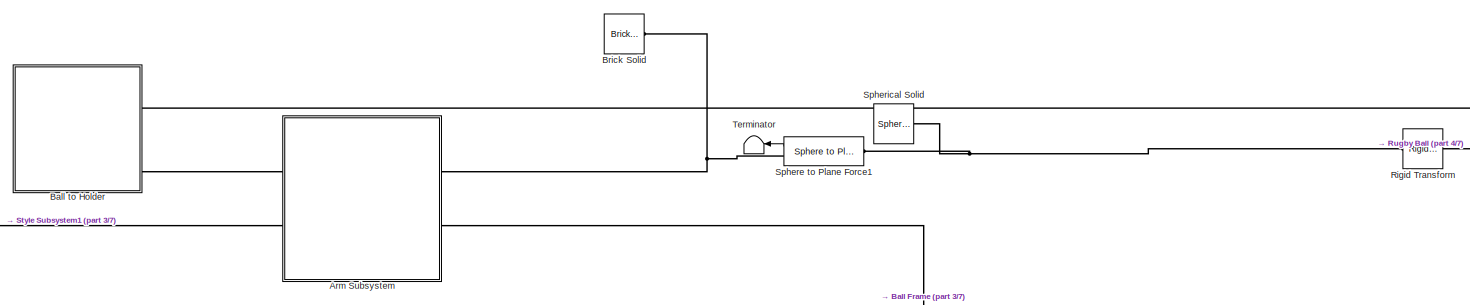
[diagram: root canvas - part 1/7, top center region]
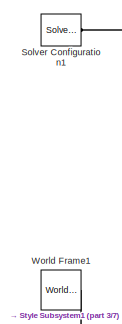
[diagram: root canvas - part 2/7, top left region]
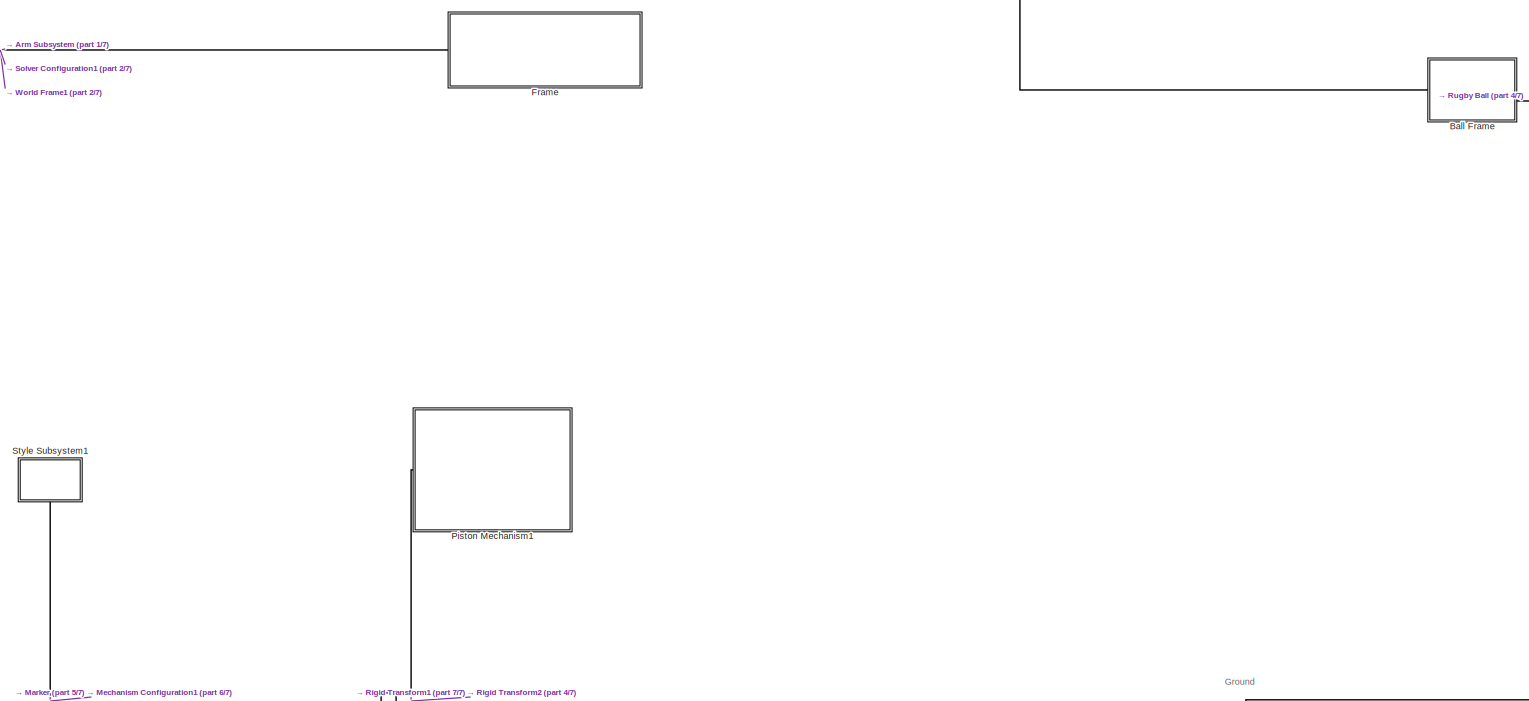
[diagram: root canvas - part 3/7, central region]
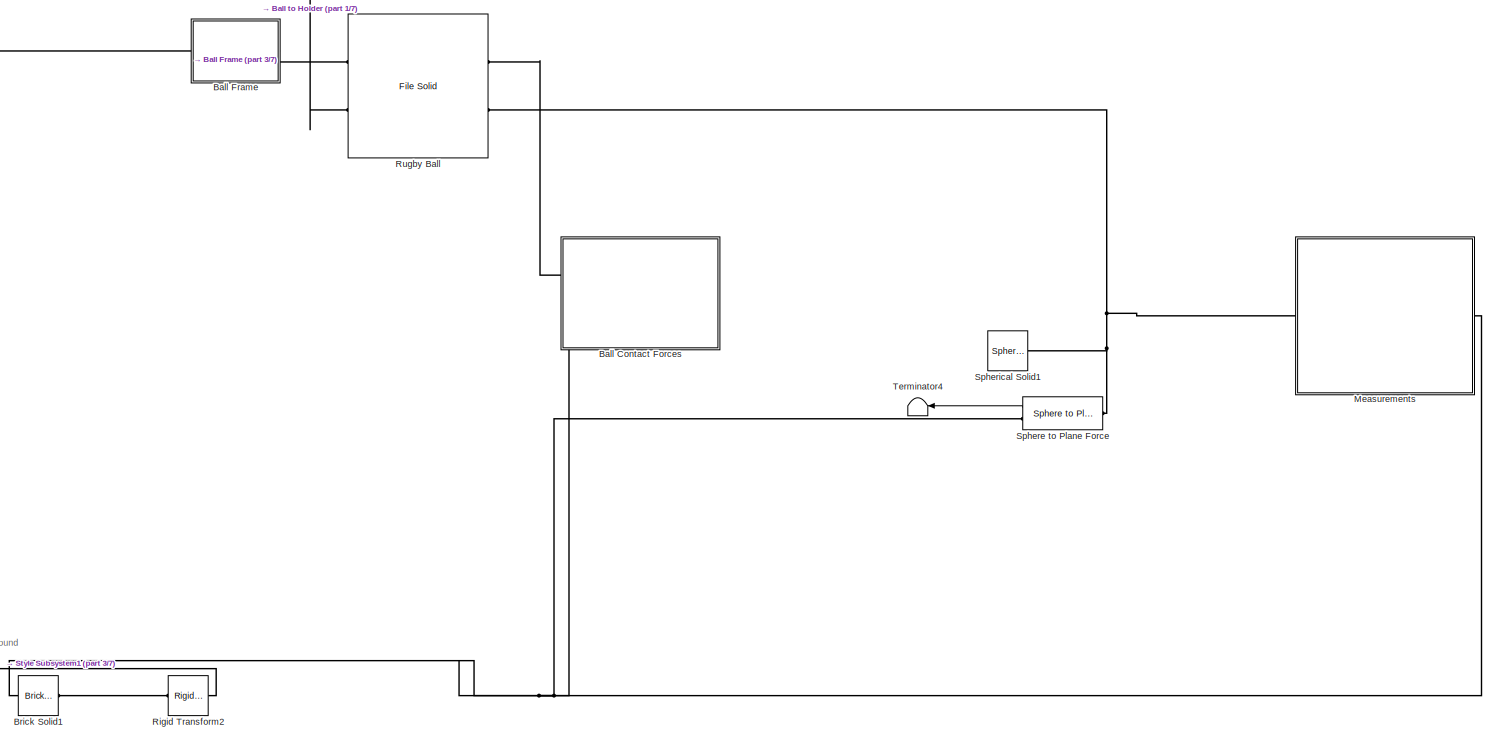
[diagram: root canvas - part 4/7, middle right region]
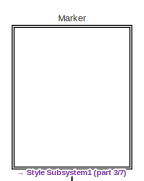
[diagram: root canvas - part 5/7, bottom left region]
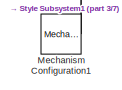
[diagram: root canvas - part 6/7, bottom left region]
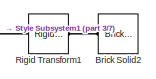
[diagram: root canvas - part 7/7, bottom left region]
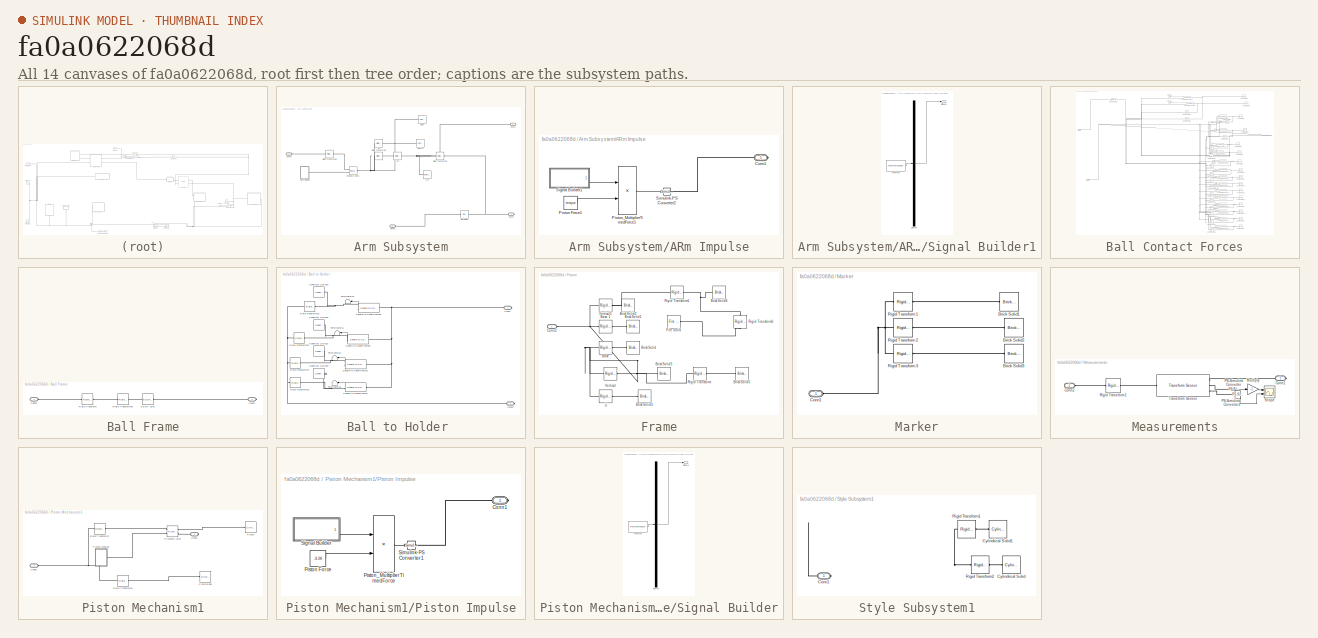
[diagram: thumbnail index - all 14 canvases of the model, root first then tree order]
MODEL slx_fa0a0622068d
KIND model
CONFIG AbsTol = auto
CONFIG EnableMultiTasking = off
CONFIG FixedStep = 0.001
CONFIG MaxStep = auto
CONFIG MinStep = auto
CONFIG RelTol = 1e-3
CONFIG SampleTimeConstraint = Unconstrained
CONFIG Solver = FixedStepAuto
CONFIG SolverName = FixedStepAuto
CONFIG StartTime = 0.0
CONFIG StopTime = 3.6
BLOCK [SubSystem] Arm Subsystem
  Ports = [0, 0, 0, 0, 0, 2, 2]
  RequestExecContextInheritance = off
BLOCK [SubSystem] Arm Subsystem/ARm Impulse
  Ports = [0, 0, 0, 0, 0, 0, 1]
  RequestExecContextInheritance = off
BLOCK [PMIOPort] Arm Subsystem/ARm Impulse/Conn1
  Side = Right
BLOCK [Constant] Arm Subsystem/ARm Impulse/Piston Force1
  Value = torque
BLOCK [Product] Arm Subsystem/ARm Impulse/Piston_MultiplierTimedForce1
  Ports = [2, 1]
BLOCK [SubSystem] Arm Subsystem/ARm Impulse/Signal Builder1
  ClipboardFcn = sigbuilder_block('clipboard');
  CloseFcn = sigbuilder_block('close');
  ContinueFcn = sigbuilder_block('continue');
  CopyFcn = sigbuilder_block('copy');
  DeleteFcn = sigbuilder_block('delete');
  LoadFcn = sigbuilder_block('load');
  MaskHideContents = on
  ModelCloseFcn = sigbuilder_block('modelClose');
  NameChangeFcn = sigbuilder_block('namechange');
  OpenFcn = sigbuilder_block('open',[437.6 199.2 550.4 400 ]);
  PauseFcn = sigbuilder_block('pause');
  Ports = [0, 1]
  PreSaveFcn = sigbuilder_block('preSave');
  RequestExecContextInheritance = off
  StartFcn = sigbuilder_block('start');
  StopFcn = sigbuilder_block('stop');
  Tag = STV Subsys
BLOCK [Demux] Arm Subsystem/ARm Impulse/Signal Builder1/Demux
  DisplayOption = none
  Outputs = 1
  Ports = [1, 1]
  Tag = STV Demux
BLOCK [FromWorkspace] Arm Subsystem/ARm Impulse/Signal Builder1/FromWs
  Tag = STV FromWs
  VariableName = tuvar
BLOCK [Outport] Arm Subsystem/ARm Impulse/Signal Builder1/Signal 1
  Tag = STV Outport
BLOCK [Reference] Arm Subsystem/ARm Impulse/Simulink-PS Converter2  REF=nesl_utility/Simulink-PS
Converter
  Ports = [1, 0, 0, 0, 0, 0, 1]
  SourceBlock = nesl_utility/Simulink-PS\nConverter
  SourceProductBaseCode = SS
  SourceType = Simulink-PS\nConverter
BLOCK [Reference] Arm Subsystem/Arm  REF=sm_lib/Body Elements/Brick Solid
  NameLocation = top
  Ports = [0, 0, 0, 0, 0, 0, 1]
  SourceBlock = sm_lib/Body Elements/Brick Solid
  SourceProductBaseCode = MS
  SourceType = Brick Solid
BLOCK [Reference] Arm Subsystem/Ball Holder  REF=sm_lib/Body Elements/File Solid
  Ports = [0, 0, 0, 0, 0, 1, 1]
  SourceBlock = sm_lib/Body Elements/File Solid
  SourceProductBaseCode = MS
  SourceType = File Solid
BLOCK [PMIOPort] Arm Subsystem/Conn1
  Side = Right
BLOCK [PMIOPort] Arm Subsystem/Conn2
  Port = 2
  Side = Left
BLOCK [PMIOPort] Arm Subsystem/Conn3
  Port = 3
  Side = Left
BLOCK [PMIOPort] Arm Subsystem/Conn4
  Port = 4
  Side = Right
BLOCK [Reference] Arm Subsystem/Gear   REF=sm_lib/Body Elements/Cylindrical Solid
  NameLocation = top
  Ports = [0, 0, 0, 0, 0, 0, 1]
  SourceBlock = sm_lib/Body Elements/Cylindrical Solid
  SourceProductBaseCode = MS
  SourceType = Cylindrical Solid
BLOCK [Reference] Arm Subsystem/Revolute Joint1  REF=sm_lib/Joints/Revolute Joint
  Ports = [0, 0, 0, 0, 0, 2, 1]
  SourceBlock = sm_lib/Joints/Revolute Joint
  SourceProductBaseCode = MS
  SourceType = Revolute Joint
BLOCK [Reference] Arm Subsystem/Rigid Transform3  REF=sm_lib/Frames and
Transforms/Rigid
Transform
  Ports = [0, 0, 0, 0, 0, 1, 1]
  SourceBlock = sm_lib/Frames and\nTransforms/Rigid\nTransform
  SourceProductBaseCode = MS
  SourceType = Rigid\nTransform
BLOCK [Reference] Arm Subsystem/Rigid Transform4  REF=sm_lib/Frames and
Transforms/Rigid
Transform
  Ports = [0, 0, 0, 0, 0, 1, 1]
  SourceBlock = sm_lib/Frames and\nTransforms/Rigid\nTransform
  SourceProductBaseCode = MS
  SourceType = Rigid\nTransform
BLOCK [Reference] Arm Subsystem/Rigid Transform5  REF=sm_lib/Frames and
Transforms/Rigid
Transform
  Ports = [0, 0, 0, 0, 0, 1, 1]
  SourceBlock = sm_lib/Frames and\nTransforms/Rigid\nTransform
  SourceProductBaseCode = MS
  SourceType = Rigid\nTransform
BLOCK [Reference] Arm Subsystem/Shaft1  REF=sm_lib/Body Elements/Cylindrical Solid
  NameLocation = top
  Ports = [0, 0, 0, 0, 0, 0, 1]
  SourceBlock = sm_lib/Body Elements/Cylindrical Solid
  SourceProductBaseCode = MS
  SourceType = Cylindrical Solid
BLOCK [Reference] Arm Subsystem/jj 1  REF=sm_lib/Frames and
Transforms/Rigid
Transform
  NameLocation = top
  Ports = [0, 0, 0, 0, 0, 1, 1]
  SourceBlock = sm_lib/Frames and\nTransforms/Rigid\nTransform
  SourceProductBaseCode = MS
  SourceType = Rigid\nTransform
BLOCK [Reference] Arm Subsystem/jj 2  REF=sm_lib/Frames and
Transforms/Rigid
Transform
  Ports = [0, 0, 0, 0, 0, 1, 1]
  SourceBlock = sm_lib/Frames and\nTransforms/Rigid\nTransform
  SourceProductBaseCode = MS
  SourceType = Rigid\nTransform
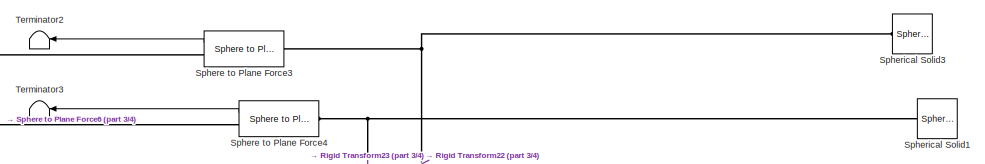
[diagram: Ball Contact Forces - part 1/4, top center region]
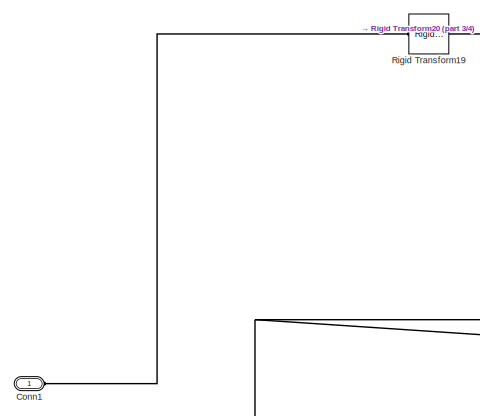
[diagram: Ball Contact Forces - part 2/4, top left region]
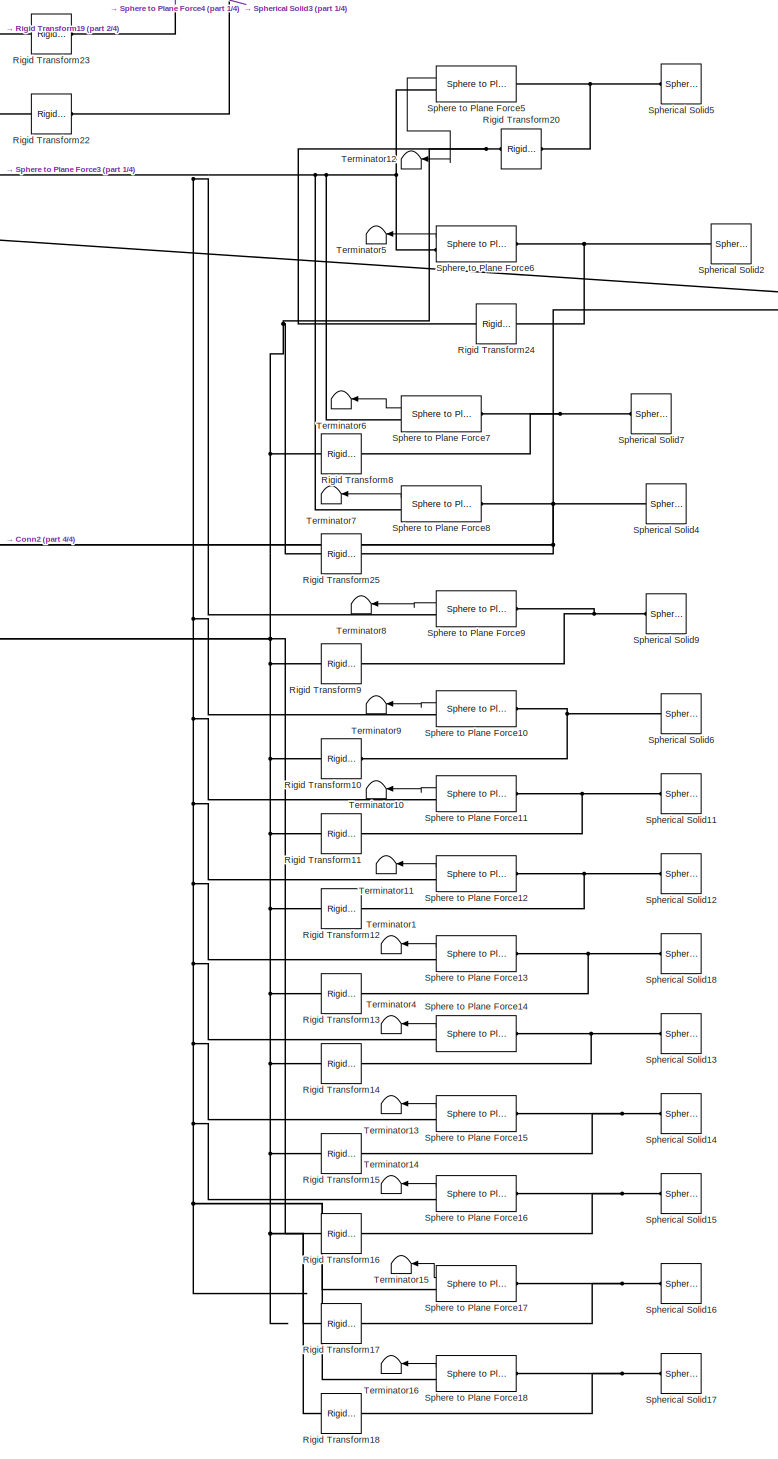
[diagram: Ball Contact Forces - part 3/4, right side, full height]
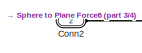
[diagram: Ball Contact Forces - part 4/4, middle left region]
BLOCK [SubSystem] Ball Contact Forces
  Ports = [0, 0, 0, 0, 0, 2]
  RequestExecContextInheritance = off
BLOCK [PMIOPort] Ball Contact Forces/Conn1
  Side = Left
BLOCK [PMIOPort] Ball Contact Forces/Conn2
  Port = 2
  Side = Left
BLOCK [Reference] Ball Contact Forces/Rigid Transform10  REF=sm_lib/Frames and
Transforms/Rigid
Transform
  Ports = [0, 0, 0, 0, 0, 1, 1]
  SourceBlock = sm_lib/Frames and\nTransforms/Rigid\nTransform
  SourceProductBaseCode = MS
  SourceType = Rigid\nTransform
BLOCK [Reference] Ball Contact Forces/Rigid Transform11  REF=sm_lib/Frames and
Transforms/Rigid
Transform
  Ports = [0, 0, 0, 0, 0, 1, 1]
  SourceBlock = sm_lib/Frames and\nTransforms/Rigid\nTransform
  SourceProductBaseCode = MS
  SourceType = Rigid\nTransform
BLOCK [Reference] Ball Contact Forces/Rigid Transform12  REF=sm_lib/Frames and
Transforms/Rigid
Transform
  Ports = [0, 0, 0, 0, 0, 1, 1]
  SourceBlock = sm_lib/Frames and\nTransforms/Rigid\nTransform
  SourceProductBaseCode = MS
  SourceType = Rigid\nTransform
BLOCK [Reference] Ball Contact Forces/Rigid Transform13  REF=sm_lib/Frames and
Transforms/Rigid
Transform
  Ports = [0, 0, 0, 0, 0, 1, 1]
  SourceBlock = sm_lib/Frames and\nTransforms/Rigid\nTransform
  SourceProductBaseCode = MS
  SourceType = Rigid\nTransform
BLOCK [Reference] Ball Contact Forces/Rigid Transform14  REF=sm_lib/Frames and
Transforms/Rigid
Transform
  Ports = [0, 0, 0, 0, 0, 1, 1]
  SourceBlock = sm_lib/Frames and\nTransforms/Rigid\nTransform
  SourceProductBaseCode = MS
  SourceType = Rigid\nTransform
BLOCK [Reference] Ball Contact Forces/Rigid Transform15  REF=sm_lib/Frames and
Transforms/Rigid
Transform
  Ports = [0, 0, 0, 0, 0, 1, 1]
  SourceBlock = sm_lib/Frames and\nTransforms/Rigid\nTransform
  SourceProductBaseCode = MS
  SourceType = Rigid\nTransform
BLOCK [Reference] Ball Contact Forces/Rigid Transform16  REF=sm_lib/Frames and
Transforms/Rigid
Transform
  Ports = [0, 0, 0, 0, 0, 1, 1]
  SourceBlock = sm_lib/Frames and\nTransforms/Rigid\nTransform
  SourceProductBaseCode = MS
  SourceType = Rigid\nTransform
BLOCK [Reference] Ball Contact Forces/Rigid Transform17  REF=sm_lib/Frames and
Transforms/Rigid
Transform
  Ports = [0, 0, 0, 0, 0, 1, 1]
  SourceBlock = sm_lib/Frames and\nTransforms/Rigid\nTransform
  SourceProductBaseCode = MS
  SourceType = Rigid\nTransform
BLOCK [Reference] Ball Contact Forces/Rigid Transform18  REF=sm_lib/Frames and
Transforms/Rigid
Transform
  Ports = [0, 0, 0, 0, 0, 1, 1]
  SourceBlock = sm_lib/Frames and\nTransforms/Rigid\nTransform
  SourceProductBaseCode = MS
  SourceType = Rigid\nTransform
BLOCK [Reference] Ball Contact Forces/Rigid Transform19  REF=sm_lib/Frames and
Transforms/Rigid
Transform
  Ports = [0, 0, 0, 0, 0, 1, 1]
  SourceBlock = sm_lib/Frames and\nTransforms/Rigid\nTransform
  SourceProductBaseCode = MS
  SourceType = Rigid\nTransform
BLOCK [Reference] Ball Contact Forces/Rigid Transform20  REF=sm_lib/Frames and
Transforms/Rigid
Transform
  Ports = [0, 0, 0, 0, 0, 1, 1]
  SourceBlock = sm_lib/Frames and\nTransforms/Rigid\nTransform
  SourceProductBaseCode = MS
  SourceType = Rigid\nTransform
BLOCK [Reference] Ball Contact Forces/Rigid Transform22  REF=sm_lib/Frames and
Transforms/Rigid
Transform
  Ports = [0, 0, 0, 0, 0, 1, 1]
  SourceBlock = sm_lib/Frames and\nTransforms/Rigid\nTransform
  SourceProductBaseCode = MS
  SourceType = Rigid\nTransform
BLOCK [Reference] Ball Contact Forces/Rigid Transform23  REF=sm_lib/Frames and
Transforms/Rigid
Transform
  Ports = [0, 0, 0, 0, 0, 1, 1]
  SourceBlock = sm_lib/Frames and\nTransforms/Rigid\nTransform
  SourceProductBaseCode = MS
  SourceType = Rigid\nTransform
BLOCK [Reference] Ball Contact Forces/Rigid Transform24  REF=sm_lib/Frames and
Transforms/Rigid
Transform
  Ports = [0, 0, 0, 0, 0, 1, 1]
  SourceBlock = sm_lib/Frames and\nTransforms/Rigid\nTransform
  SourceProductBaseCode = MS
  SourceType = Rigid\nTransform
BLOCK [Reference] Ball Contact Forces/Rigid Transform25  REF=sm_lib/Frames and
Transforms/Rigid
Transform
  Ports = [0, 0, 0, 0, 0, 1, 1]
  SourceBlock = sm_lib/Frames and\nTransforms/Rigid\nTransform
  SourceProductBaseCode = MS
  SourceType = Rigid\nTransform
BLOCK [Reference] Ball Contact Forces/Rigid Transform8  REF=sm_lib/Frames and
Transforms/Rigid
Transform
  Ports = [0, 0, 0, 0, 0, 1, 1]
  SourceBlock = sm_lib/Frames and\nTransforms/Rigid\nTransform
  SourceProductBaseCode = MS
  SourceType = Rigid\nTransform
BLOCK [Reference] Ball Contact Forces/Rigid Transform9  REF=sm_lib/Frames and
Transforms/Rigid
Transform
  Ports = [0, 0, 0, 0, 0, 1, 1]
  SourceBlock = sm_lib/Frames and\nTransforms/Rigid\nTransform
  SourceProductBaseCode = MS
  SourceType = Rigid\nTransform
BLOCK [Reference] Ball Contact Forces/Sphere to Plane Force10  REF=Contact_Forces_Lib/3D/Sphere to Plane Force
  Ports = [0, 1, 0, 0, 0, 1, 1]
  SourceBlock = Contact_Forces_Lib/3D/Sphere to Plane Force
  SourceProductName = Simscape Multibody Contact Forces Library
  SourceType = Sphere to Plane Force
BLOCK [Reference] Ball Contact Forces/Sphere to Plane Force11  REF=Contact_Forces_Lib/3D/Sphere to Plane Force
  Ports = [0, 1, 0, 0, 0, 1, 1]
  SourceBlock = Contact_Forces_Lib/3D/Sphere to Plane Force
  SourceProductName = Simscape Multibody Contact Forces Library
  SourceType = Sphere to Plane Force
BLOCK [Reference] Ball Contact Forces/Sphere to Plane Force12  REF=Contact_Forces_Lib/3D/Sphere to Plane Force
  Ports = [0, 1, 0, 0, 0, 1, 1]
  SourceBlock = Contact_Forces_Lib/3D/Sphere to Plane Force
  SourceProductName = Simscape Multibody Contact Forces Library
  SourceType = Sphere to Plane Force
BLOCK [Reference] Ball Contact Forces/Sphere to Plane Force13  REF=Contact_Forces_Lib/3D/Sphere to Plane Force
  Ports = [0, 1, 0, 0, 0, 1, 1]
  SourceBlock = Contact_Forces_Lib/3D/Sphere to Plane Force
  SourceProductName = Simscape Multibody Contact Forces Library
  SourceType = Sphere to Plane Force
BLOCK [Reference] Ball Contact Forces/Sphere to Plane Force14  REF=Contact_Forces_Lib/3D/Sphere to Plane Force
  Ports = [0, 1, 0, 0, 0, 1, 1]
  SourceBlock = Contact_Forces_Lib/3D/Sphere to Plane Force
  SourceProductName = Simscape Multibody Contact Forces Library
  SourceType = Sphere to Plane Force
BLOCK [Reference] Ball Contact Forces/Sphere to Plane Force15  REF=Contact_Forces_Lib/3D/Sphere to Plane Force
  Ports = [0, 1, 0, 0, 0, 1, 1]
  SourceBlock = Contact_Forces_Lib/3D/Sphere to Plane Force
  SourceProductName = Simscape Multibody Contact Forces Library
  SourceType = Sphere to Plane Force
BLOCK [Reference] Ball Contact Forces/Sphere to Plane Force16  REF=Contact_Forces_Lib/3D/Sphere to Plane Force
  Ports = [0, 1, 0, 0, 0, 1, 1]
  SourceBlock = Contact_Forces_Lib/3D/Sphere to Plane Force
  SourceProductName = Simscape Multibody Contact Forces Library
  SourceType = Sphere to Plane Force
BLOCK [Reference] Ball Contact Forces/Sphere to Plane Force17  REF=Contact_Forces_Lib/3D/Sphere to Plane Force
  Ports = [0, 1, 0, 0, 0, 1, 1]
  SourceBlock = Contact_Forces_Lib/3D/Sphere to Plane Force
  SourceProductName = Simscape Multibody Contact Forces Library
  SourceType = Sphere to Plane Force
BLOCK [Reference] Ball Contact Forces/Sphere to Plane Force18  REF=Contact_Forces_Lib/3D/Sphere to Plane Force
  Ports = [0, 1, 0, 0, 0, 1, 1]
  SourceBlock = Contact_Forces_Lib/3D/Sphere to Plane Force
  SourceProductName = Simscape Multibody Contact Forces Library
  SourceType = Sphere to Plane Force
BLOCK [Reference] Ball Contact Forces/Sphere to Plane Force3  REF=Contact_Forces_Lib/3D/Sphere to Plane Force
  Ports = [0, 1, 0, 0, 0, 1, 1]
  SourceBlock = Contact_Forces_Lib/3D/Sphere to Plane Force
  SourceProductName = Simscape Multibody Contact Forces Library
  SourceType = Sphere to Plane Force
BLOCK [Reference] Ball Contact Forces/Sphere to Plane Force4  REF=Contact_Forces_Lib/3D/Sphere to Plane Force
  Ports = [0, 1, 0, 0, 0, 1, 1]
  SourceBlock = Contact_Forces_Lib/3D/Sphere to Plane Force
  SourceProductName = Simscape Multibody Contact Forces Library
  SourceType = Sphere to Plane Force
BLOCK [Reference] Ball Contact Forces/Sphere to Plane Force5  REF=Contact_Forces_Lib/3D/Sphere to Plane Force
  Ports = [0, 1, 0, 0, 0, 1, 1]
  SourceBlock = Contact_Forces_Lib/3D/Sphere to Plane Force
  SourceProductName = Simscape Multibody Contact Forces Library
  SourceType = Sphere to Plane Force
BLOCK [Reference] Ball Contact Forces/Sphere to Plane Force6  REF=Contact_Forces_Lib/3D/Sphere to Plane Force
  Ports = [0, 1, 0, 0, 0, 1, 1]
  SourceBlock = Contact_Forces_Lib/3D/Sphere to Plane Force
  SourceProductName = Simscape Multibody Contact Forces Library
  SourceType = Sphere to Plane Force
BLOCK [Reference] Ball Contact Forces/Sphere to Plane Force7  REF=Contact_Forces_Lib/3D/Sphere to Plane Force
  Ports = [0, 1, 0, 0, 0, 1, 1]
  SourceBlock = Contact_Forces_Lib/3D/Sphere to Plane Force
  SourceProductName = Simscape Multibody Contact Forces Library
  SourceType = Sphere to Plane Force
BLOCK [Reference] Ball Contact Forces/Sphere to Plane Force8  REF=Contact_Forces_Lib/3D/Sphere to Plane Force
  Ports = [0, 1, 0, 0, 0, 1, 1]
  SourceBlock = Contact_Forces_Lib/3D/Sphere to Plane Force
  SourceProductName = Simscape Multibody Contact Forces Library
  SourceType = Sphere to Plane Force
BLOCK [Reference] Ball Contact Forces/Sphere to Plane Force9  REF=Contact_Forces_Lib/3D/Sphere to Plane Force
  Ports = [0, 1, 0, 0, 0, 1, 1]
  SourceBlock = Contact_Forces_Lib/3D/Sphere to Plane Force
  SourceProductName = Simscape Multibody Contact Forces Library
  SourceType = Sphere to Plane Force
BLOCK [Reference] Ball Contact Forces/Spherical Solid1  REF=sm_lib/Body Elements/Spherical Solid
  Commented = on
  NameLocation = top
  Ports = [0, 0, 0, 0, 0, 0, 1]
  SourceBlock = sm_lib/Body Elements/Spherical Solid
  SourceProductBaseCode = MS
  SourceType = Spherical Solid
BLOCK [Reference] Ball Contact Forces/Spherical Solid11  REF=sm_lib/Body Elements/Spherical Solid
  Commented = on
  NameLocation = top
  Ports = [0, 0, 0, 0, 0, 0, 1]
  SourceBlock = sm_lib/Body Elements/Spherical Solid
  SourceProductBaseCode = MS
  SourceType = Spherical Solid
BLOCK [Reference] Ball Contact Forces/Spherical Solid12  REF=sm_lib/Body Elements/Spherical Solid
  Commented = on
  NameLocation = top
  Ports = [0, 0, 0, 0, 0, 0, 1]
  SourceBlock = sm_lib/Body Elements/Spherical Solid
  SourceProductBaseCode = MS
  SourceType = Spherical Solid
BLOCK [Reference] Ball Contact Forces/Spherical Solid13  REF=sm_lib/Body Elements/Spherical Solid
  Commented = on
  NameLocation = top
  Ports = [0, 0, 0, 0, 0, 0, 1]
  SourceBlock = sm_lib/Body Elements/Spherical Solid
  SourceProductBaseCode = MS
  SourceType = Spherical Solid
BLOCK [Reference] Ball Contact Forces/Spherical Solid14  REF=sm_lib/Body Elements/Spherical Solid
  Commented = on
  NameLocation = top
  Ports = [0, 0, 0, 0, 0, 0, 1]
  SourceBlock = sm_lib/Body Elements/Spherical Solid
  SourceProductBaseCode = MS
  SourceType = Spherical Solid
BLOCK [Reference] Ball Contact Forces/Spherical Solid15  REF=sm_lib/Body Elements/Spherical Solid
  Commented = on
  NameLocation = top
  Ports = [0, 0, 0, 0, 0, 0, 1]
  SourceBlock = sm_lib/Body Elements/Spherical Solid
  SourceProductBaseCode = MS
  SourceType = Spherical Solid
BLOCK [Reference] Ball Contact Forces/Spherical Solid16  REF=sm_lib/Body Elements/Spherical Solid
  Commented = on
  NameLocation = top
  Ports = [0, 0, 0, 0, 0, 0, 1]
  SourceBlock = sm_lib/Body Elements/Spherical Solid
  SourceProductBaseCode = MS
  SourceType = Spherical Solid
BLOCK [Reference] Ball Contact Forces/Spherical Solid17  REF=sm_lib/Body Elements/Spherical Solid
  Commented = on
  NameLocation = top
  Ports = [0, 0, 0, 0, 0, 0, 1]
  SourceBlock = sm_lib/Body Elements/Spherical Solid
  SourceProductBaseCode = MS
  SourceType = Spherical Solid
BLOCK [Reference] Ball Contact Forces/Spherical Solid18  REF=sm_lib/Body Elements/Spherical Solid
  Commented = on
  NameLocation = top
  Ports = [0, 0, 0, 0, 0, 0, 1]
  SourceBlock = sm_lib/Body Elements/Spherical Solid
  SourceProductBaseCode = MS
  SourceType = Spherical Solid
BLOCK [Reference] Ball Contact Forces/Spherical Solid2  REF=sm_lib/Body Elements/Spherical Solid
  Commented = on
  NameLocation = top
  Ports = [0, 0, 0, 0, 0, 0, 1]
  SourceBlock = sm_lib/Body Elements/Spherical Solid
  SourceProductBaseCode = MS
  SourceType = Spherical Solid
BLOCK [Reference] Ball Contact Forces/Spherical Solid3  REF=sm_lib/Body Elements/Spherical Solid
  Commented = on
  NameLocation = top
  Ports = [0, 0, 0, 0, 0, 0, 1]
  SourceBlock = sm_lib/Body Elements/Spherical Solid
  SourceProductBaseCode = MS
  SourceType = Spherical Solid
BLOCK [Reference] Ball Contact Forces/Spherical Solid4  REF=sm_lib/Body Elements/Spherical Solid
  Commented = on
  NameLocation = top
  Ports = [0, 0, 0, 0, 0, 0, 1]
  SourceBlock = sm_lib/Body Elements/Spherical Solid
  SourceProductBaseCode = MS
  SourceType = Spherical Solid
BLOCK [Reference] Ball Contact Forces/Spherical Solid5  REF=sm_lib/Body Elements/Spherical Solid
  Commented = on
  NameLocation = top
  Ports = [0, 0, 0, 0, 0, 0, 1]
  SourceBlock = sm_lib/Body Elements/Spherical Solid
  SourceProductBaseCode = MS
  SourceType = Spherical Solid
BLOCK [Reference] Ball Contact Forces/Spherical Solid6  REF=sm_lib/Body Elements/Spherical Solid
  Commented = on
  NameLocation = top
  Ports = [0, 0, 0, 0, 0, 0, 1]
  SourceBlock = sm_lib/Body Elements/Spherical Solid
  SourceProductBaseCode = MS
  SourceType = Spherical Solid
BLOCK [Reference] Ball Contact Forces/Spherical Solid7  REF=sm_lib/Body Elements/Spherical Solid
  Commented = on
  NameLocation = top
  Ports = [0, 0, 0, 0, 0, 0, 1]
  SourceBlock = sm_lib/Body Elements/Spherical Solid
  SourceProductBaseCode = MS
  SourceType = Spherical Solid
BLOCK [Reference] Ball Contact Forces/Spherical Solid9  REF=sm_lib/Body Elements/Spherical Solid
  Commented = on
  NameLocation = top
  Ports = [0, 0, 0, 0, 0, 0, 1]
  SourceBlock = sm_lib/Body Elements/Spherical Solid
  SourceProductBaseCode = MS
  SourceType = Spherical Solid
BLOCK [Terminator] Ball Contact Forces/Terminator1
  NameLocation = top
BLOCK [Terminator] Ball Contact Forces/Terminator10
  NameLocation = top
BLOCK [Terminator] Ball Contact Forces/Terminator11
  NameLocation = top
BLOCK [Terminator] Ball Contact Forces/Terminator12
  NameLocation = top
BLOCK [Terminator] Ball Contact Forces/Terminator13
  NameLocation = top
BLOCK [Terminator] Ball Contact Forces/Terminator14
  NameLocation = top
BLOCK [Terminator] Ball Contact Forces/Terminator15
  NameLocation = top
BLOCK [Terminator] Ball Contact Forces/Terminator16
  NameLocation = top
BLOCK [Terminator] Ball Contact Forces/Terminator2
  NameLocation = top
BLOCK [Terminator] Ball Contact Forces/Terminator3
  NameLocation = top
BLOCK [Terminator] Ball Contact Forces/Terminator4
  NameLocation = top
BLOCK [Terminator] Ball Contact Forces/Terminator5
  NameLocation = top
BLOCK [Terminator] Ball Contact Forces/Terminator6
  NameLocation = top
BLOCK [Terminator] Ball Contact Forces/Terminator7
  NameLocation = top
BLOCK [Terminator] Ball Contact Forces/Terminator8
  NameLocation = top
BLOCK [Terminator] Ball Contact Forces/Terminator9
  NameLocation = top
BLOCK [SubSystem] Ball Frame
  Ports = [0, 0, 0, 0, 0, 1, 1]
  RequestExecContextInheritance = off
BLOCK [Reference] Ball Frame/6-DOF Joint  REF=sm_lib/Joints/6-DOF Joint
  Ports = [0, 0, 0, 0, 0, 1, 1]
  SourceBlock = sm_lib/Joints/6-DOF Joint
  SourceProductBaseCode = MS
  SourceType = 6-DOF Joint
BLOCK [PMIOPort] Ball Frame/Conn1
  Side = Right
BLOCK [PMIOPort] Ball Frame/Conn2
  Port = 2
  Side = Left
BLOCK [Reference] Ball Frame/Rigid Transform  REF=sm_lib/Frames and
Transforms/Rigid
Transform
  Ports = [0, 0, 0, 0, 0, 1, 1]
  SourceBlock = sm_lib/Frames and\nTransforms/Rigid\nTransform
  SourceProductBaseCode = MS
  SourceType = Rigid\nTransform
BLOCK [Reference] Ball Frame/Rigid Transform30  REF=sm_lib/Frames and
Transforms/Rigid
Transform
  Ports = [0, 0, 0, 0, 0, 1, 1]
  SourceBlock = sm_lib/Frames and\nTransforms/Rigid\nTransform
  SourceProductBaseCode = MS
  SourceType = Rigid\nTransform
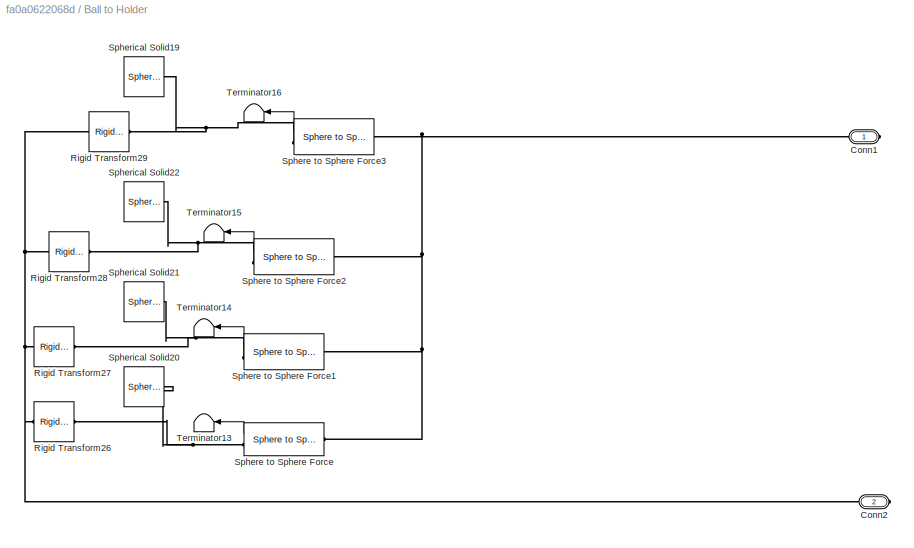
BLOCK [SubSystem] Ball to Holder 
  Ports = [0, 0, 0, 0, 0, 0, 2]
  RequestExecContextInheritance = off
BLOCK [PMIOPort] Ball to Holder /Conn1
  Side = Right
BLOCK [PMIOPort] Ball to Holder /Conn2
  Port = 2
  Side = Right
BLOCK [Reference] Ball to Holder /Rigid Transform26  REF=sm_lib/Frames and
Transforms/Rigid
Transform
  Ports = [0, 0, 0, 0, 0, 1, 1]
  SourceBlock = sm_lib/Frames and\nTransforms/Rigid\nTransform
  SourceProductBaseCode = MS
  SourceType = Rigid\nTransform
BLOCK [Reference] Ball to Holder /Rigid Transform27  REF=sm_lib/Frames and
Transforms/Rigid
Transform
  Ports = [0, 0, 0, 0, 0, 1, 1]
  SourceBlock = sm_lib/Frames and\nTransforms/Rigid\nTransform
  SourceProductBaseCode = MS
  SourceType = Rigid\nTransform
BLOCK [Reference] Ball to Holder /Rigid Transform28  REF=sm_lib/Frames and
Transforms/Rigid
Transform
  Ports = [0, 0, 0, 0, 0, 1, 1]
  SourceBlock = sm_lib/Frames and\nTransforms/Rigid\nTransform
  SourceProductBaseCode = MS
  SourceType = Rigid\nTransform
BLOCK [Reference] Ball to Holder /Rigid Transform29  REF=sm_lib/Frames and
Transforms/Rigid
Transform
  Ports = [0, 0, 0, 0, 0, 1, 1]
  SourceBlock = sm_lib/Frames and\nTransforms/Rigid\nTransform
  SourceProductBaseCode = MS
  SourceType = Rigid\nTransform
BLOCK [Reference] Ball to Holder /Sphere to Sphere Force  REF=Contact_Forces_Lib/3D/Sphere to Sphere Force
  Ports = [0, 1, 0, 0, 0, 1, 1]
  SourceBlock = Contact_Forces_Lib/3D/Sphere to Sphere Force
  SourceProductName = Simscape Multibody Contact Forces Library
  SourceType = Sphere to Sphere Force
BLOCK [Reference] Ball to Holder /Sphere to Sphere Force1  REF=Contact_Forces_Lib/3D/Sphere to Sphere Force
  Ports = [0, 1, 0, 0, 0, 1, 1]
  SourceBlock = Contact_Forces_Lib/3D/Sphere to Sphere Force
  SourceProductName = Simscape Multibody Contact Forces Library
  SourceType = Sphere to Sphere Force
BLOCK [Reference] Ball to Holder /Sphere to Sphere Force2  REF=Contact_Forces_Lib/3D/Sphere to Sphere Force
  Ports = [0, 1, 0, 0, 0, 1, 1]
  SourceBlock = Contact_Forces_Lib/3D/Sphere to Sphere Force
  SourceProductName = Simscape Multibody Contact Forces Library
  SourceType = Sphere to Sphere Force
BLOCK [Reference] Ball to Holder /Sphere to Sphere Force3  REF=Contact_Forces_Lib/3D/Sphere to Sphere Force
  Ports = [0, 1, 0, 0, 0, 1, 1]
  SourceBlock = Contact_Forces_Lib/3D/Sphere to Sphere Force
  SourceProductName = Simscape Multibody Contact Forces Library
  SourceType = Sphere to Sphere Force
BLOCK [Reference] Ball to Holder /Spherical Solid19  REF=sm_lib/Body Elements/Spherical Solid
  Commented = on
  Ports = [0, 0, 0, 0, 0, 0, 1]
  SourceBlock = sm_lib/Body Elements/Spherical Solid
  SourceProductBaseCode = MS
  SourceType = Spherical Solid
BLOCK [Reference] Ball to Holder /Spherical Solid20  REF=sm_lib/Body Elements/Spherical Solid
  Commented = on
  Ports = [0, 0, 0, 0, 0, 0, 1]
  SourceBlock = sm_lib/Body Elements/Spherical Solid
  SourceProductBaseCode = MS
  SourceType = Spherical Solid
BLOCK [Reference] Ball to Holder /Spherical Solid21  REF=sm_lib/Body Elements/Spherical Solid
  Commented = on
  Ports = [0, 0, 0, 0, 0, 0, 1]
  SourceBlock = sm_lib/Body Elements/Spherical Solid
  SourceProductBaseCode = MS
  SourceType = Spherical Solid
BLOCK [Reference] Ball to Holder /Spherical Solid22  REF=sm_lib/Body Elements/Spherical Solid
  Commented = on
  Ports = [0, 0, 0, 0, 0, 0, 1]
  SourceBlock = sm_lib/Body Elements/Spherical Solid
  SourceProductBaseCode = MS
  SourceType = Spherical Solid
BLOCK [Terminator] Ball to Holder /Terminator13
  NameLocation = top
BLOCK [Terminator] Ball to Holder /Terminator14
  NameLocation = top
BLOCK [Terminator] Ball to Holder /Terminator15
  NameLocation = top
BLOCK [Terminator] Ball to Holder /Terminator16
  NameLocation = top
BLOCK [Reference] Brick Solid  REF=sm_lib/Body Elements/Brick Solid
  Commented = on
  Ports = [0, 0, 0, 0, 0, 0, 1]
  SourceBlock = sm_lib/Body Elements/Brick Solid
  SourceProductBaseCode = MS
  SourceType = Brick Solid
BLOCK [Reference] Brick Solid1  REF=sm_lib/Body Elements/Brick Solid
  Ports = [0, 0, 0, 0, 0, 1, 1]
  SourceBlock = sm_lib/Body Elements/Brick Solid
  SourceProductBaseCode = MS
  SourceType = Brick Solid
BLOCK [Reference] Brick Solid2  REF=sm_lib/Body Elements/Brick Solid
  NameLocation = top
  Ports = [0, 0, 0, 0, 0, 0, 1]
  SourceBlock = sm_lib/Body Elements/Brick Solid
  SourceProductBaseCode = MS
  SourceType = Brick Solid
BLOCK [SubSystem] Frame
  Ports = [0, 0, 0, 0, 0, 1]
  RequestExecContextInheritance = off
BLOCK [Reference] Frame/Base   REF=sm_lib/Frames and
Transforms/Rigid
Transform
  Ports = [0, 0, 0, 0, 0, 1, 1]
  SourceBlock = sm_lib/Frames and\nTransforms/Rigid\nTransform
  SourceProductBaseCode = MS
  SourceType = Rigid\nTransform
BLOCK [Reference] Frame/Base 1  REF=sm_lib/Frames and
Transforms/Rigid
Transform
  Ports = [0, 0, 0, 0, 0, 1, 1]
  SourceBlock = sm_lib/Frames and\nTransforms/Rigid\nTransform
  SourceProductBaseCode = MS
  SourceType = Rigid\nTransform
BLOCK [Reference] Frame/Brick Solid  REF=sm_lib/Body Elements/Brick Solid
  NameLocation = top
  Ports = [0, 0, 0, 0, 0, 0, 1]
  SourceBlock = sm_lib/Body Elements/Brick Solid
  SourceProductBaseCode = MS
  SourceType = Brick Solid
BLOCK [Reference] Frame/Brick Solid1  REF=sm_lib/Body Elements/Brick Solid
  NameLocation = top
  Ports = [0, 0, 0, 0, 0, 0, 1]
  SourceBlock = sm_lib/Body Elements/Brick Solid
  SourceProductBaseCode = MS
  SourceType = Brick Solid
BLOCK [Reference] Frame/Brick Solid2  REF=sm_lib/Body Elements/Brick Solid
  NameLocation = top
  Ports = [0, 0, 0, 0, 0, 0, 1]
  SourceBlock = sm_lib/Body Elements/Brick Solid
  SourceProductBaseCode = MS
  SourceType = Brick Solid
BLOCK [Reference] Frame/Brick Solid3  REF=sm_lib/Body Elements/Brick Solid
  NameLocation = top
  Ports = [0, 0, 0, 0, 0, 0, 1]
  SourceBlock = sm_lib/Body Elements/Brick Solid
  SourceProductBaseCode = MS
  SourceType = Brick Solid
BLOCK [Reference] Frame/Brick Solid4  REF=sm_lib/Body Elements/Brick Solid
  NameLocation = top
  Ports = [0, 0, 0, 0, 0, 1, 1]
  SourceBlock = sm_lib/Body Elements/Brick Solid
  SourceProductBaseCode = MS
  SourceType = Brick Solid
BLOCK [Reference] Frame/Brick Solid5  REF=sm_lib/Body Elements/Brick Solid
  NameLocation = top
  Ports = [0, 0, 0, 0, 0, 0, 1]
  SourceBlock = sm_lib/Body Elements/Brick Solid
  SourceProductBaseCode = MS
  SourceType = Brick Solid
BLOCK [Reference] Frame/Brick Solid6  REF=sm_lib/Body Elements/Brick Solid
  NameLocation = top
  Ports = [0, 0, 0, 0, 0, 0, 1]
  SourceBlock = sm_lib/Body Elements/Brick Solid
  SourceProductBaseCode = MS
  SourceType = Brick Solid
BLOCK [PMIOPort] Frame/Conn2
  Side = Left
BLOCK [Reference] Frame/File Solid  REF=sm_lib/Body Elements/File Solid
  Ports = [0, 0, 0, 0, 0, 0, 1]
  SourceBlock = sm_lib/Body Elements/File Solid
  SourceProductBaseCode = MS
  SourceType = File Solid
BLOCK [Reference] Frame/Rigid Transform  REF=sm_lib/Frames and
Transforms/Rigid
Transform
  Ports = [0, 0, 0, 0, 0, 1, 1]
  SourceBlock = sm_lib/Frames and\nTransforms/Rigid\nTransform
  SourceProductBaseCode = MS
  SourceType = Rigid\nTransform
BLOCK [Reference] Frame/Rigid Transform1  REF=sm_lib/Frames and
Transforms/Rigid
Transform
  Ports = [0, 0, 0, 0, 0, 1, 1]
  SourceBlock = sm_lib/Frames and\nTransforms/Rigid\nTransform
  SourceProductBaseCode = MS
  SourceType = Rigid\nTransform
BLOCK [Reference] Frame/Rigid Transform2  REF=sm_lib/Frames and
Transforms/Rigid
Transform
  NameLocation = left
  Ports = [0, 0, 0, 0, 0, 1, 1]
  SourceBlock = sm_lib/Frames and\nTransforms/Rigid\nTransform
  SourceProductBaseCode = MS
  SourceType = Rigid\nTransform
BLOCK [Reference] Frame/Vertical   REF=sm_lib/Frames and
Transforms/Rigid
Transform
  Ports = [0, 0, 0, 0, 0, 1, 1]
  SourceBlock = sm_lib/Frames and\nTransforms/Rigid\nTransform
  SourceProductBaseCode = MS
  SourceType = Rigid\nTransform
BLOCK [Reference] Frame/Vertical1   REF=sm_lib/Frames and
Transforms/Rigid
Transform
  Ports = [0, 0, 0, 0, 0, 1, 1]
  SourceBlock = sm_lib/Frames and\nTransforms/Rigid\nTransform
  SourceProductBaseCode = MS
  SourceType = Rigid\nTransform
BLOCK [Reference] Frame/jj   REF=sm_lib/Frames and
Transforms/Rigid
Transform
  Ports = [0, 0, 0, 0, 0, 1, 1]
  SourceBlock = sm_lib/Frames and\nTransforms/Rigid\nTransform
  SourceProductBaseCode = MS
  SourceType = Rigid\nTransform
BLOCK [SubSystem] Marker
  NameLocation = right
  Ports = [0, 0, 0, 0, 0, 1]
  RequestExecContextInheritance = off
BLOCK [Reference] Marker/Brick Solid1  REF=sm_lib/Body Elements/Brick Solid
  NameLocation = top
  Ports = [0, 0, 0, 0, 0, 0, 1]
  SourceBlock = sm_lib/Body Elements/Brick Solid
  SourceProductBaseCode = MS
  SourceType = Brick Solid
BLOCK [Reference] Marker/Brick Solid2  REF=sm_lib/Body Elements/Brick Solid
  NameLocation = top
  Ports = [0, 0, 0, 0, 0, 0, 1]
  SourceBlock = sm_lib/Body Elements/Brick Solid
  SourceProductBaseCode = MS
  SourceType = Brick Solid
BLOCK [Reference] Marker/Brick Solid3  REF=sm_lib/Body Elements/Brick Solid
  NameLocation = top
  Ports = [0, 0, 0, 0, 0, 0, 1]
  SourceBlock = sm_lib/Body Elements/Brick Solid
  SourceProductBaseCode = MS
  SourceType = Brick Solid
BLOCK [PMIOPort] Marker/Conn1
  Side = Left
BLOCK [Reference] Marker/Rigid Transform1  REF=sm_lib/Frames and
Transforms/Rigid
Transform
  Ports = [0, 0, 0, 0, 0, 1, 1]
  SourceBlock = sm_lib/Frames and\nTransforms/Rigid\nTransform
  SourceProductBaseCode = MS
  SourceType = Rigid\nTransform
BLOCK [Reference] Marker/Rigid Transform2  REF=sm_lib/Frames and
Transforms/Rigid
Transform
  Ports = [0, 0, 0, 0, 0, 1, 1]
  SourceBlock = sm_lib/Frames and\nTransforms/Rigid\nTransform
  SourceProductBaseCode = MS
  SourceType = Rigid\nTransform
BLOCK [Reference] Marker/Rigid Transform3  REF=sm_lib/Frames and
Transforms/Rigid
Transform
  Ports = [0, 0, 0, 0, 0, 1, 1]
  SourceBlock = sm_lib/Frames and\nTransforms/Rigid\nTransform
  SourceProductBaseCode = MS
  SourceType = Rigid\nTransform
BLOCK [SubSystem] Measurements
  NameLocation = top
  Ports = [0, 0, 0, 0, 0, 1, 1]
  RequestExecContextInheritance = off
BLOCK [PMIOPort] Measurements/Conn1
  NameLocation = top
  Side = Right
BLOCK [PMIOPort] Measurements/Conn2
  Port = 2
  Side = Left
BLOCK [Gain] Measurements/Multiply
  Gain = -1
BLOCK [Reference] Measurements/PS-Simulink Converter  REF=nesl_utility/PS-Simulink
Converter
  Ports = [0, 1, 0, 0, 0, 1]
  SourceBlock = nesl_utility/PS-Simulink\nConverter
  SourceProductBaseCode = SS
  SourceType = PS-Simulink\nConverter
BLOCK [Reference] Measurements/PS-Simulink Converter1  REF=nesl_utility/PS-Simulink
Converter
  Ports = [0, 1, 0, 0, 0, 1]
  SourceBlock = nesl_utility/PS-Simulink\nConverter
  SourceProductBaseCode = SS
  SourceType = PS-Simulink\nConverter
BLOCK [Reference] Measurements/Rigid Transform1  REF=sm_lib/Frames and
Transforms/Rigid
Transform
  Ports = [0, 0, 0, 0, 0, 1, 1]
  SourceBlock = sm_lib/Frames and\nTransforms/Rigid\nTransform
  SourceProductBaseCode = MS
  SourceType = Rigid\nTransform
BLOCK [Scope] Measurements/Scope
  Floating = off
  NumInputPorts = 2
  Ports = [2]
  ScopeSpecificationString = Simulink.scopes.TimeScopeBlockCfg('CurrentConfiguration', extmgr.ConfigurationSet(extmgr.Configuration('Core','General UI',true),extmgr.Configuration('Core','Source UI',true),extmgr.Configuration('Sources','WiredSimulink',true),extmgr.Configuration('Visuals','Time Domain',true,'SerializedDisplays',{struct('MinYLimReal','-23.20705','MaxYLimReal','14.62945','YLabelReal','','MinYLimMag','0.00000','Ma...<+1704ch>
BLOCK [Reference] Measurements/Transform Sensor  REF=sm_lib/Frames and
Transforms/Transform
Sensor
  Ports = [0, 0, 0, 0, 0, 1, 3]
  SourceBlock = sm_lib/Frames and\nTransforms/Transform\nSensor
  SourceProductBaseCode = MS
  SourceType = Transform\nSensor
BLOCK [Reference] Mechanism Configuration1  REF=sm_lib/Utilities/Mechanism
Configuration
  Ports = [0, 0, 0, 0, 0, 0, 1]
  SourceBlock = sm_lib/Utilities/Mechanism\nConfiguration
  SourceProductBaseCode = MS
  SourceType = Mechanism\nConfiguration
BLOCK [SubSystem] Piston Mechanism1
  Ports = [0, 0, 0, 0, 0, 1, 1]
  RequestExecContextInheritance = off
BLOCK [PMIOPort] Piston Mechanism1/Conn1
  Side = Right
BLOCK [PMIOPort] Piston Mechanism1/Conn2
  Port = 2
  Side = Left
BLOCK [Reference] Piston Mechanism1/Piston  REF=sm_lib/Body Elements/Cylindrical Solid
  NameLocation = top
  Ports = [0, 0, 0, 0, 0, 0, 1]
  SourceBlock = sm_lib/Body Elements/Cylindrical Solid
  SourceProductBaseCode = MS
  SourceType = Cylindrical Solid
BLOCK [Reference] Piston Mechanism1/Piston Base  REF=sm_lib/Body Elements/Brick Solid
  NameLocation = top
  Ports = [0, 0, 0, 0, 0, 0, 1]
  SourceBlock = sm_lib/Body Elements/Brick Solid
  SourceProductBaseCode = MS
  SourceType = Brick Solid
BLOCK [SubSystem] Piston Mechanism1/Piston Impulse
  Ports = [0, 0, 0, 0, 0, 0, 1]
  RequestExecContextInheritance = off
BLOCK [PMIOPort] Piston Mechanism1/Piston Impulse/Conn1
  Side = Right
BLOCK [Constant] Piston Mechanism1/Piston Impulse/Piston Force
  Value = -9.28
BLOCK [Product] Piston Mechanism1/Piston Impulse/Piston_MultiplierTimedForce
  Ports = [2, 1]
BLOCK [SubSystem] Piston Mechanism1/Piston Impulse/Signal Builder
  ClipboardFcn = sigbuilder_block('clipboard');
  CloseFcn = sigbuilder_block('close');
  ContinueFcn = sigbuilder_block('continue');
  CopyFcn = sigbuilder_block('copy');
  DeleteFcn = sigbuilder_block('delete');
  LoadFcn = sigbuilder_block('load');
  MaskHideContents = on
  ModelCloseFcn = sigbuilder_block('modelClose');
  NameChangeFcn = sigbuilder_block('namechange');
  OpenFcn = sigbuilder_block('open',[437.6 199.2 550.4 400 ]);
  PauseFcn = sigbuilder_block('pause');
  Ports = [0, 1]
  PreSaveFcn = sigbuilder_block('preSave');
  RequestExecContextInheritance = off
  StartFcn = sigbuilder_block('start');
  StopFcn = sigbuilder_block('stop');
  Tag = STV Subsys
BLOCK [Demux] Piston Mechanism1/Piston Impulse/Signal Builder/Demux
  DisplayOption = none
  Outputs = 1
  Ports = [1, 1]
  Tag = STV Demux
BLOCK [FromWorkspace] Piston Mechanism1/Piston Impulse/Signal Builder/FromWs
  Tag = STV FromWs
  VariableName = tuvar
BLOCK [Outport] Piston Mechanism1/Piston Impulse/Signal Builder/Signal 1
  Tag = STV Outport
BLOCK [Reference] Piston Mechanism1/Piston Impulse/Simulink-PS Converter1  REF=nesl_utility/Simulink-PS
Converter
  Ports = [1, 0, 0, 0, 0, 0, 1]
  SourceBlock = nesl_utility/Simulink-PS\nConverter
  SourceProductBaseCode = SS
  SourceType = Simulink-PS\nConverter
BLOCK [Reference] Piston Mechanism1/Prismatic Joint  REF=sm_lib/Joints/Prismatic
Joint
  Ports = [0, 0, 0, 0, 0, 2, 2]
  SourceBlock = sm_lib/Joints/Prismatic\nJoint
  SourceProductBaseCode = MS
  SourceType = Prismatic\nJoint
BLOCK [Reference] Piston Mechanism1/Rigid Transform6  REF=sm_lib/Frames and
Transforms/Rigid
Transform
  Ports = [0, 0, 0, 0, 0, 1, 1]
  SourceBlock = sm_lib/Frames and\nTransforms/Rigid\nTransform
  SourceProductBaseCode = MS
  SourceType = Rigid\nTransform
BLOCK [Reference] Piston Mechanism1/Rigid Transform7  REF=sm_lib/Frames and
Transforms/Rigid
Transform
  Ports = [0, 0, 0, 0, 0, 1, 1]
  SourceBlock = sm_lib/Frames and\nTransforms/Rigid\nTransform
  SourceProductBaseCode = MS
  SourceType = Rigid\nTransform
BLOCK [Reference] Rigid Transform  REF=sm_lib/Frames and
Transforms/Rigid
Transform
  Ports = [0, 0, 0, 0, 0, 1, 1]
  SourceBlock = sm_lib/Frames and\nTransforms/Rigid\nTransform
  SourceProductBaseCode = MS
  SourceType = Rigid\nTransform
BLOCK [Reference] Rigid Transform1  REF=sm_lib/Frames and
Transforms/Rigid
Transform
  Ports = [0, 0, 0, 0, 0, 1, 1]
  SourceBlock = sm_lib/Frames and\nTransforms/Rigid\nTransform
  SourceProductBaseCode = MS
  SourceType = Rigid\nTransform
BLOCK [Reference] Rigid Transform2  REF=sm_lib/Frames and
Transforms/Rigid
Transform
  Ports = [0, 0, 0, 0, 0, 1, 1]
  SourceBlock = sm_lib/Frames and\nTransforms/Rigid\nTransform
  SourceProductBaseCode = MS
  SourceType = Rigid\nTransform
BLOCK [Reference] Rugby Ball  REF=sm_lib/Body Elements/File Solid
  NameLocation = top
  Ports = [0, 0, 0, 0, 0, 2, 2]
  SourceBlock = sm_lib/Body Elements/File Solid
  SourceProductBaseCode = MS
  SourceType = File Solid
BLOCK [Reference] Solver Configuration1  REF=nesl_utility/Solver
Configuration
  Ports = [0, 0, 0, 0, 0, 0, 1]
  SourceBlock = nesl_utility/Solver\nConfiguration
  SourceProductBaseCode = SS
  SourceType = Solver\nConfiguration
BLOCK [Reference] Sphere to Plane Force  REF=Contact_Forces_Lib/3D/Sphere to Plane Force
  Ports = [0, 1, 0, 0, 0, 1, 1]
  SourceBlock = Contact_Forces_Lib/3D/Sphere to Plane Force
  SourceProductName = Simscape Multibody Contact Forces Library
  SourceType = Sphere to Plane Force
BLOCK [Reference] Sphere to Plane Force1  REF=Contact_Forces_Lib/3D/Sphere to Plane Force
  Ports = [0, 1, 0, 0, 0, 1, 1]
  SourceBlock = Contact_Forces_Lib/3D/Sphere to Plane Force
  SourceProductName = Simscape Multibody Contact Forces Library
  SourceType = Sphere to Plane Force
BLOCK [Reference] Spherical Solid  REF=sm_lib/Body Elements/Spherical Solid
  Commented = on
  Ports = [0, 0, 0, 0, 0, 0, 1]
  SourceBlock = sm_lib/Body Elements/Spherical Solid
  SourceProductBaseCode = MS
  SourceType = Spherical Solid
BLOCK [Reference] Spherical Solid1  REF=sm_lib/Body Elements/Spherical Solid
  Commented = on
  Ports = [0, 0, 0, 0, 0, 0, 1]
  SourceBlock = sm_lib/Body Elements/Spherical Solid
  SourceProductBaseCode = MS
  SourceType = Spherical Solid
BLOCK [SubSystem] Style Subsystem1
  NameLocation = right
  Ports = [0, 0, 0, 0, 0, 1]
  RequestExecContextInheritance = off
BLOCK [PMIOPort] Style Subsystem1/Conn1
  Side = Left
BLOCK [Reference] Style Subsystem1/Cylindrical Solid  REF=sm_lib/Body Elements/Cylindrical Solid
  NameLocation = top
  Ports = [0, 0, 0, 0, 0, 0, 1]
  SourceBlock = sm_lib/Body Elements/Cylindrical Solid
  SourceProductBaseCode = MS
  SourceType = Cylindrical Solid
BLOCK [Reference] Style Subsystem1/Cylindrical Solid1  REF=sm_lib/Body Elements/Cylindrical Solid
  NameLocation = top
  Ports = [0, 0, 0, 0, 0, 0, 1]
  SourceBlock = sm_lib/Body Elements/Cylindrical Solid
  SourceProductBaseCode = MS
  SourceType = Cylindrical Solid
BLOCK [Reference] Style Subsystem1/Rigid Transform1  REF=sm_lib/Frames and
Transforms/Rigid
Transform
  Ports = [0, 0, 0, 0, 0, 1, 1]
  SourceBlock = sm_lib/Frames and\nTransforms/Rigid\nTransform
  SourceProductBaseCode = MS
  SourceType = Rigid\nTransform
BLOCK [Reference] Style Subsystem1/Rigid Transform2  REF=sm_lib/Frames and
Transforms/Rigid
Transform
  Ports = [0, 0, 0, 0, 0, 1, 1]
  SourceBlock = sm_lib/Frames and\nTransforms/Rigid\nTransform
  SourceProductBaseCode = MS
  SourceType = Rigid\nTransform
BLOCK [Terminator] Terminator
  NameLocation = top
BLOCK [Terminator] Terminator4
  NameLocation = top
BLOCK [Reference] World Frame1  REF=sm_lib/Frames and
Transforms/World Frame
  Ports = [0, 0, 0, 0, 0, 0, 1]
  SourceBlock = sm_lib/Frames and\nTransforms/World Frame
  SourceProductBaseCode = MS
  SourceType = World Frame
ANNOTATION (root): Ground
LINE Arm Subsystem/ARm Impulse/Piston Force1:1 -> Arm Subsystem/ARm Impulse/Piston_MultiplierTimedForce1:2
LINE Arm Subsystem/ARm Impulse/Piston_MultiplierTimedForce1:1 -> Arm Subsystem/ARm Impulse/Simulink-PS Converter2:1
LINE Arm Subsystem/ARm Impulse/Signal Builder1:1 -> Arm Subsystem/ARm Impulse/Piston_MultiplierTimedForce1:1
LINE Ball Contact Forces/Sphere to Plane Force10:1 -> Ball Contact Forces/Terminator9:1
LINE Ball Contact Forces/Sphere to Plane Force11:1 -> Ball Contact Forces/Terminator10:1
LINE Ball Contact Forces/Sphere to Plane Force12:1 -> Ball Contact Forces/Terminator11:1
LINE Ball Contact Forces/Sphere to Plane Force13:1 -> Ball Contact Forces/Terminator1:1
LINE Ball Contact Forces/Sphere to Plane Force14:1 -> Ball Contact Forces/Terminator4:1
LINE Ball Contact Forces/Sphere to Plane Force15:1 -> Ball Contact Forces/Terminator13:1
LINE Ball Contact Forces/Sphere to Plane Force16:1 -> Ball Contact Forces/Terminator14:1
LINE Ball Contact Forces/Sphere to Plane Force17:1 -> Ball Contact Forces/Terminator15:1
LINE Ball Contact Forces/Sphere to Plane Force18:1 -> Ball Contact Forces/Terminator16:1
LINE Ball Contact Forces/Sphere to Plane Force3:1 -> Ball Contact Forces/Terminator2:1
LINE Ball Contact Forces/Sphere to Plane Force4:1 -> Ball Contact Forces/Terminator3:1
LINE Ball Contact Forces/Sphere to Plane Force5:1 -> Ball Contact Forces/Terminator12:1
LINE Ball Contact Forces/Sphere to Plane Force6:1 -> Ball Contact Forces/Terminator5:1
LINE Ball Contact Forces/Sphere to Plane Force7:1 -> Ball Contact Forces/Terminator6:1
LINE Ball Contact Forces/Sphere to Plane Force8:1 -> Ball Contact Forces/Terminator7:1
LINE Ball Contact Forces/Sphere to Plane Force9:1 -> Ball Contact Forces/Terminator8:1
LINE Ball to Holder /Sphere to Sphere Force1:1 -> Ball to Holder /Terminator14:1
LINE Ball to Holder /Sphere to Sphere Force2:1 -> Ball to Holder /Terminator15:1
LINE Ball to Holder /Sphere to Sphere Force3:1 -> Ball to Holder /Terminator16:1
LINE Ball to Holder /Sphere to Sphere Force:1 -> Ball to Holder /Terminator13:1
LINE Measurements/Multiply:1 -> Measurements/Scope:1
LINE Measurements/PS-Simulink Converter1:1 -> Measurements/Scope:2
LINE Measurements/PS-Simulink Converter:1 -> Measurements/Multiply:1
LINE Piston Mechanism1/Piston Impulse/Piston Force:1 -> Piston Mechanism1/Piston Impulse/Piston_MultiplierTimedForce:2
LINE Piston Mechanism1/Piston Impulse/Piston_MultiplierTimedForce:1 -> Piston Mechanism1/Piston Impulse/Simulink-PS Converter1:1
LINE Piston Mechanism1/Piston Impulse/Signal Builder:1 -> Piston Mechanism1/Piston Impulse/Piston_MultiplierTimedForce:1
LINE Sphere to Plane Force1:1 -> Terminator:1
LINE Sphere to Plane Force:1 -> Terminator4:1
PLINE Arm Subsystem/ARm Impulse/Conn1:RConn1 -- Arm Subsystem/ARm Impulse/Simulink-PS Converter2:RConn1
PLINE Arm Subsystem/ARm Impulse:RConn1 -- Arm Subsystem/Revolute Joint1:LConn2
PNET net1: Arm Subsystem/Arm:RConn1 -- Arm Subsystem/Conn1:RConn1 -- Arm Subsystem/Rigid Transform4:LConn1 -- Arm Subsystem/jj 2:RConn1
PLINE Arm Subsystem/Ball Holder:LConn1 -- Arm Subsystem/Conn2:RConn1
PNET net2: Arm Subsystem/Ball Holder:RConn1 -- Arm Subsystem/Conn4:RConn1 -- Arm Subsystem/Rigid Transform4:RConn1
PLINE Arm Subsystem/Conn3:RConn1 -- Arm Subsystem/Rigid Transform3:LConn1
PNET net3: Arm Subsystem/Gear :RConn1 -- Arm Subsystem/Revolute Joint1:RConn1 -- Arm Subsystem/Rigid Transform5:LConn1 -- Arm Subsystem/jj 1:RConn1
PLINE Arm Subsystem/Revolute Joint1:LConn1 -- Arm Subsystem/Rigid Transform3:RConn1
PLINE Arm Subsystem/Rigid Transform5:RConn1 -- Arm Subsystem/jj 2:LConn1
PLINE Arm Subsystem/Shaft1:RConn1 -- Arm Subsystem/jj 1:LConn1
PLINE Arm Subsystem:LConn1 -- Ball to Holder :RConn2
PNET net4: Arm Subsystem:LConn2 -- Frame:LConn1 -- Marker:LConn1 -- Mechanism Configuration1:RConn1 -- Piston Mechanism1:LConn1 -- Rigid Transform1:LConn1 -- Rigid Transform2:RConn1 -- Solver Configuration1:RConn1 -- Style Subsystem1:LConn1 -- World Frame1:RConn1
PNET net5: Arm Subsystem:RConn1 -- Brick Solid:RConn1 -- Sphere to Plane Force1:RConn1
PLINE Arm Subsystem:RConn2 -- Ball Frame:LConn1
PLINE Ball Contact Forces/Conn1:RConn1 -- Ball Contact Forces/Rigid Transform19:LConn1
PNET net6: Ball Contact Forces/Conn2:RConn1 -- Ball Contact Forces/Sphere to Plane Force10:RConn1 -- Ball Contact Forces/Sphere to Plane Force11:RConn1 -- Ball Contact Forces/Sphere to Plane Force12:RConn1 -- Ball Contact Forces/Sphere to Plane Force13:RConn1 -- Ball Contact Forces/Sphere to Plane Force14:RConn1 -- Ball Contact Forces/Sphere to Plane Force15:RConn1 -- Ball Contact Forces/Sphere to Plane Force16:RConn1 -- Ball Contact Forces/Sphere to Plane Force17:RConn1 -- Ball Contact Forces/Sphere to Plane Force18:RConn1 -- Ball Contact Forces/Sphere to Plane Force3:RConn1 -- Ball Contact Forces/Sphere to Plane Force4:RConn1 -- Ball Contact Forces/Sphere to Plane Force5:RConn1 -- Ball Contact Forces/Sphere to Plane Force6:RConn1 -- Ball Contact Forces/Sphere to Plane Force7:RConn1 -- Ball Contact Forces/Sphere to Plane Force8:RConn1 -- Ball Contact Forces/Sphere to Plane Force9:RConn1
PNET net7: Ball Contact Forces/Rigid Transform10:LConn1 -- Ball Contact Forces/Rigid Transform11:LConn1 -- Ball Contact Forces/Rigid Transform12:LConn1 -- Ball Contact Forces/Rigid Transform13:LConn1 -- Ball Contact Forces/Rigid Transform14:LConn1 -- Ball Contact Forces/Rigid Transform15:LConn1 -- Ball Contact Forces/Rigid Transform16:LConn1 -- Ball Contact Forces/Rigid Transform17:LConn1 -- Ball Contact Forces/Rigid Transform18:LConn1 -- Ball Contact Forces/Rigid Transform19:RConn1 -- Ball Contact Forces/Rigid Transform20:LConn1 -- Ball Contact Forces/Rigid Transform22:LConn1 -- Ball Contact Forces/Rigid Transform23:LConn1 -- Ball Contact Forces/Rigid Transform24:LConn1 -- Ball Contact Forces/Rigid Transform25:LConn1 -- Ball Contact Forces/Rigid Transform8:LConn1 -- Ball Contact Forces/Rigid Transform9:LConn1
PNET net8: Ball Contact Forces/Rigid Transform10:RConn1 -- Ball Contact Forces/Sphere to Plane Force10:LConn1 -- Ball Contact Forces/Spherical Solid6:RConn1
PNET net9: Ball Contact Forces/Rigid Transform11:RConn1 -- Ball Contact Forces/Sphere to Plane Force11:LConn1 -- Ball Contact Forces/Spherical Solid11:RConn1
PNET net10: Ball Contact Forces/Rigid Transform12:RConn1 -- Ball Contact Forces/Sphere to Plane Force12:LConn1 -- Ball Contact Forces/Spherical Solid12:RConn1
PNET net11: Ball Contact Forces/Rigid Transform13:RConn1 -- Ball Contact Forces/Sphere to Plane Force13:LConn1 -- Ball Contact Forces/Spherical Solid18:RConn1
PNET net12: Ball Contact Forces/Rigid Transform14:RConn1 -- Ball Contact Forces/Sphere to Plane Force14:LConn1 -- Ball Contact Forces/Spherical Solid13:RConn1
PNET net13: Ball Contact Forces/Rigid Transform15:RConn1 -- Ball Contact Forces/Sphere to Plane Force15:LConn1 -- Ball Contact Forces/Spherical Solid14:RConn1
PNET net14: Ball Contact Forces/Rigid Transform16:RConn1 -- Ball Contact Forces/Sphere to Plane Force16:LConn1 -- Ball Contact Forces/Spherical Solid15:RConn1
PNET net15: Ball Contact Forces/Rigid Transform17:RConn1 -- Ball Contact Forces/Sphere to Plane Force17:LConn1 -- Ball Contact Forces/Spherical Solid16:RConn1
PNET net16: Ball Contact Forces/Rigid Transform18:RConn1 -- Ball Contact Forces/Sphere to Plane Force18:LConn1 -- Ball Contact Forces/Spherical Solid17:RConn1
PNET net17: Ball Contact Forces/Rigid Transform20:RConn1 -- Ball Contact Forces/Sphere to Plane Force5:LConn1 -- Ball Contact Forces/Spherical Solid5:RConn1
PNET net18: Ball Contact Forces/Rigid Transform22:RConn1 -- Ball Contact Forces/Sphere to Plane Force3:LConn1 -- Ball Contact Forces/Spherical Solid3:RConn1
PNET net19: Ball Contact Forces/Rigid Transform23:RConn1 -- Ball Contact Forces/Sphere to Plane Force4:LConn1 -- Ball Contact Forces/Spherical Solid1:RConn1
PNET net20: Ball Contact Forces/Rigid Transform24:RConn1 -- Ball Contact Forces/Sphere to Plane Force6:LConn1 -- Ball Contact Forces/Spherical Solid2:RConn1
PNET net21: Ball Contact Forces/Rigid Transform25:RConn1 -- Ball Contact Forces/Sphere to Plane Force8:LConn1 -- Ball Contact Forces/Spherical Solid4:RConn1
PNET net22: Ball Contact Forces/Rigid Transform8:RConn1 -- Ball Contact Forces/Sphere to Plane Force7:LConn1 -- Ball Contact Forces/Spherical Solid7:RConn1
PNET net23: Ball Contact Forces/Rigid Transform9:RConn1 -- Ball Contact Forces/Sphere to Plane Force9:LConn1 -- Ball Contact Forces/Spherical Solid9:RConn1
PLINE Ball Contact Forces:LConn1 -- Rugby Ball:LConn1
PNET net24: Ball Contact Forces:LConn2 -- Brick Solid1:LConn1 -- Measurements:LConn1 -- Sphere to Plane Force:RConn1
PLINE Ball Frame/6-DOF Joint:LConn1 -- Ball Frame/Rigid Transform30:RConn1
PLINE Ball Frame/6-DOF Joint:RConn1 -- Ball Frame/Conn1:RConn1
PLINE Ball Frame/Conn2:RConn1 -- Ball Frame/Rigid Transform:LConn1
PLINE Ball Frame/Rigid Transform30:LConn1 -- Ball Frame/Rigid Transform:RConn1
PLINE Ball Frame:RConn1 -- Rugby Ball:RConn1
PNET net25: Ball to Holder /Conn1:RConn1 -- Ball to Holder /Sphere to Sphere Force1:LConn1 -- Ball to Holder /Sphere to Sphere Force2:LConn1 -- Ball to Holder /Sphere to Sphere Force3:LConn1 -- Ball to Holder /Sphere to Sphere Force:LConn1
PNET net26: Ball to Holder /Conn2:RConn1 -- Ball to Holder /Rigid Transform26:LConn1 -- Ball to Holder /Rigid Transform27:LConn1 -- Ball to Holder /Rigid Transform28:LConn1 -- Ball to Holder /Rigid Transform29:LConn1
PNET net27: Ball to Holder /Rigid Transform26:RConn1 -- Ball to Holder /Sphere to Sphere Force:RConn1 -- Ball to Holder /Spherical Solid20:RConn1
PNET net28: Ball to Holder /Rigid Transform27:RConn1 -- Ball to Holder /Sphere to Sphere Force1:RConn1 -- Ball to Holder /Spherical Solid21:RConn1
PNET net29: Ball to Holder /Rigid Transform28:RConn1 -- Ball to Holder /Sphere to Sphere Force2:RConn1 -- Ball to Holder /Spherical Solid22:RConn1
PNET net30: Ball to Holder /Rigid Transform29:RConn1 -- Ball to Holder /Sphere to Sphere Force3:RConn1 -- Ball to Holder /Spherical Solid19:RConn1
PNET net31: Ball to Holder :RConn1 -- Rigid Transform:RConn1 -- Rugby Ball:RConn2
PLINE Brick Solid1:RConn1 -- Rigid Transform2:LConn1
PLINE Brick Solid2:RConn1 -- Rigid Transform1:RConn1
PNET net32: Frame/Base 1:LConn1 -- Frame/Base :LConn1 -- Frame/Conn2:RConn1 -- Frame/Vertical :LConn1 -- Frame/Vertical1 :LConn1 -- Frame/jj :LConn1
PLINE Frame/Base 1:RConn1 -- Frame/Brick Solid1:RConn1
PLINE Frame/Base :RConn1 -- Frame/Brick Solid:RConn1
PNET net33: Frame/Brick Solid2:RConn1 -- Frame/Rigid Transform1:LConn1 -- Frame/Vertical1 :RConn1
PNET net34: Frame/Brick Solid3:RConn1 -- Frame/Rigid Transform:LConn1 -- Frame/Vertical :RConn1
PLINE Frame/Brick Solid4:RConn1 -- Frame/jj :RConn1
PLINE Frame/Brick Solid5:RConn1 -- Frame/Rigid Transform:RConn1
PNET net35: Frame/Brick Solid6:RConn1 -- Frame/Rigid Transform1:RConn1 -- Frame/Rigid Transform2:LConn1
PLINE Frame/File Solid:RConn1 -- Frame/Rigid Transform2:RConn1
PLINE Marker/Brick Solid1:RConn1 -- Marker/Rigid Transform1:RConn1
PLINE Marker/Brick Solid2:RConn1 -- Marker/Rigid Transform2:RConn1
PLINE Marker/Brick Solid3:RConn1 -- Marker/Rigid Transform3:RConn1
PNET net36: Marker/Conn1:RConn1 -- Marker/Rigid Transform1:LConn1 -- Marker/Rigid Transform2:LConn1 -- Marker/Rigid Transform3:LConn1
PLINE Measurements/Conn1:RConn1 -- Measurements/Transform Sensor:RConn1
PLINE Measurements/Conn2:RConn1 -- Measurements/Rigid Transform1:LConn1
PLINE Measurements/PS-Simulink Converter1:LConn1 -- Measurements/Transform Sensor:RConn3
PLINE Measurements/PS-Simulink Converter:LConn1 -- Measurements/Transform Sensor:RConn2
PLINE Measurements/Rigid Transform1:RConn1 -- Measurements/Transform Sensor:LConn1
PNET net37: Measurements:RConn1 -- Rugby Ball:LConn2 -- Sphere to Plane Force:LConn1 -- Spherical Solid1:RConn1
PLINE Piston Mechanism1/Conn1:RConn1 -- Piston Mechanism1/Prismatic Joint:RConn2
PNET net38: Piston Mechanism1/Conn2:RConn1 -- Piston Mechanism1/Rigid Transform6:LConn1 -- Piston Mechanism1/Rigid Transform7:LConn1
PLINE Piston Mechanism1/Piston Base:RConn1 -- Piston Mechanism1/Rigid Transform6:RConn1
PLINE Piston Mechanism1/Piston Impulse/Conn1:RConn1 -- Piston Mechanism1/Piston Impulse/Simulink-PS Converter1:RConn1
PLINE Piston Mechanism1/Piston Impulse:RConn1 -- Piston Mechanism1/Prismatic Joint:LConn2
PLINE Piston Mechanism1/Piston:RConn1 -- Piston Mechanism1/Prismatic Joint:RConn1
PLINE Piston Mechanism1/Prismatic Joint:LConn1 -- Piston Mechanism1/Rigid Transform7:RConn1
PNET net39: Rigid Transform:LConn1 -- Sphere to Plane Force1:LConn1 -- Spherical Solid:RConn1
PNET net40: Style Subsystem1/Conn1:RConn1 -- Style Subsystem1/Rigid Transform1:LConn1 -- Style Subsystem1/Rigid Transform2:LConn1
PLINE Style Subsystem1/Cylindrical Solid1:RConn1 -- Style Subsystem1/Rigid Transform1:RConn1
PLINE Style Subsystem1/Cylindrical Solid:RConn1 -- Style Subsystem1/Rigid Transform2:RConn1
note: PNET lines group multi-terminal physical nets as a canonical sorted terminal list (undirected conserving connections); 2-terminal nets keep the pairwise PLINE form
